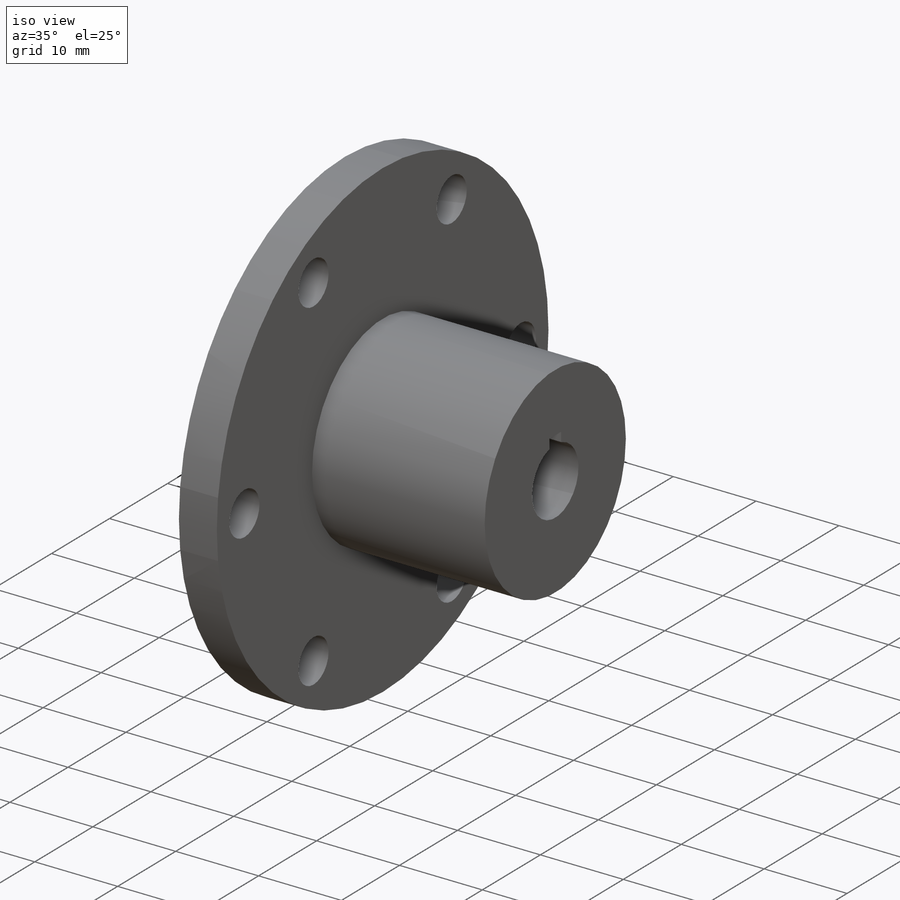
[diagram: iso view]
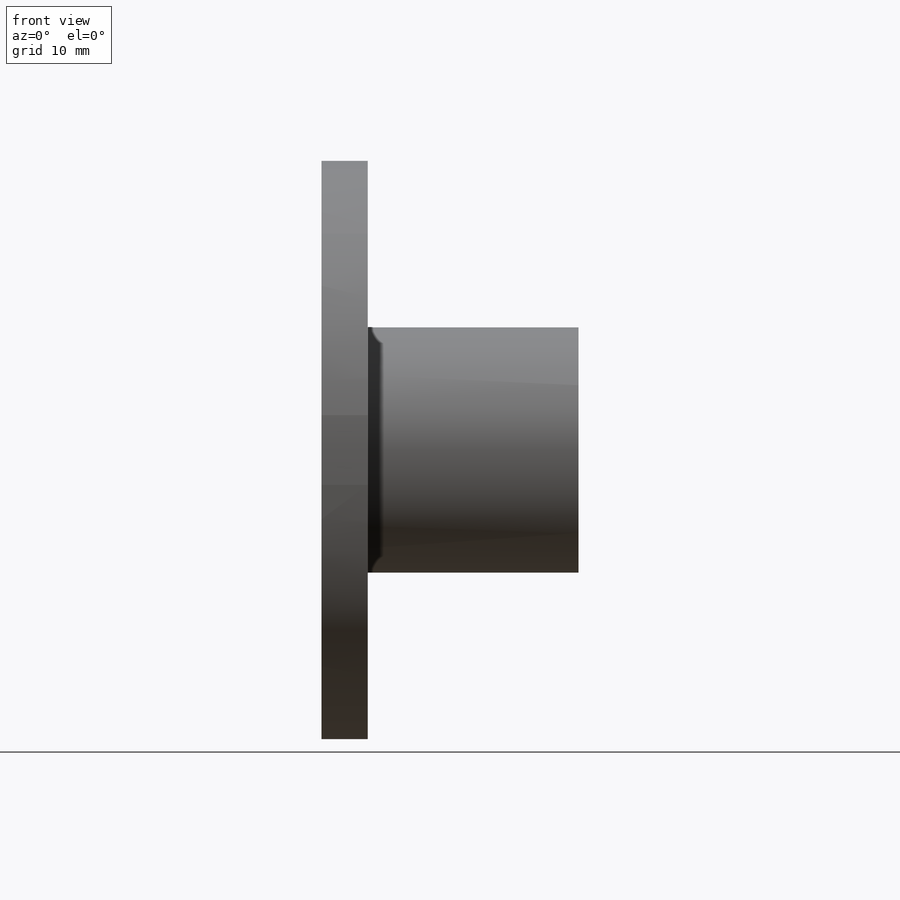
[diagram: front view]
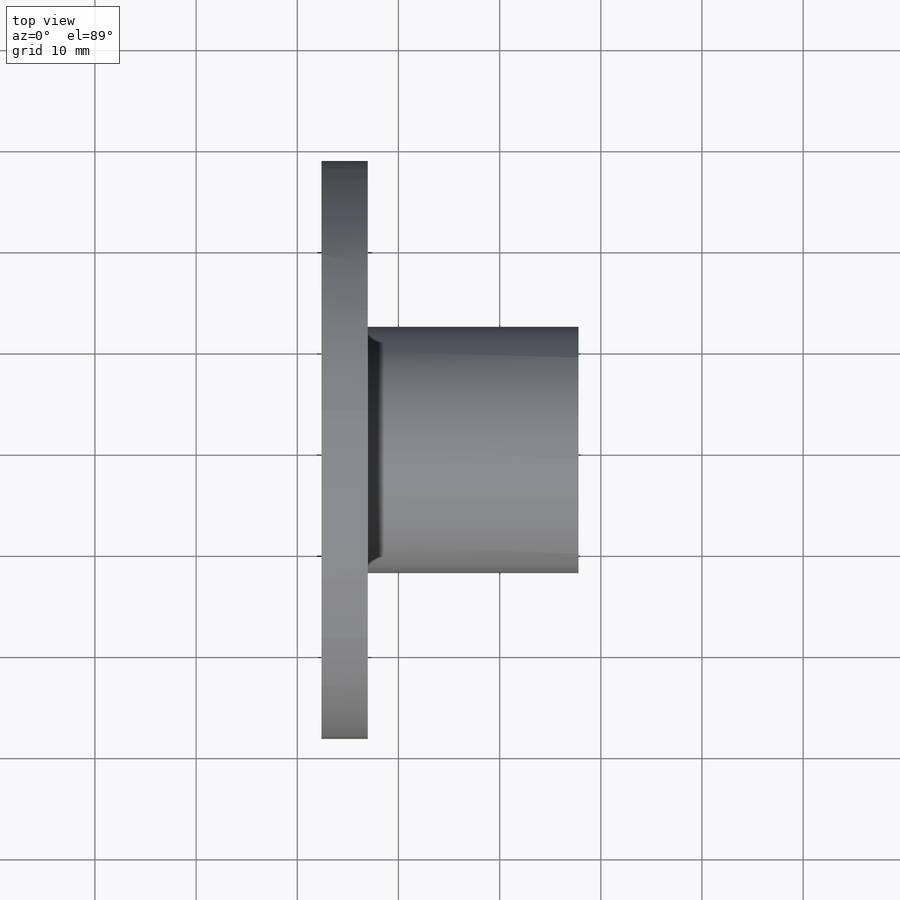
[diagram: top view]
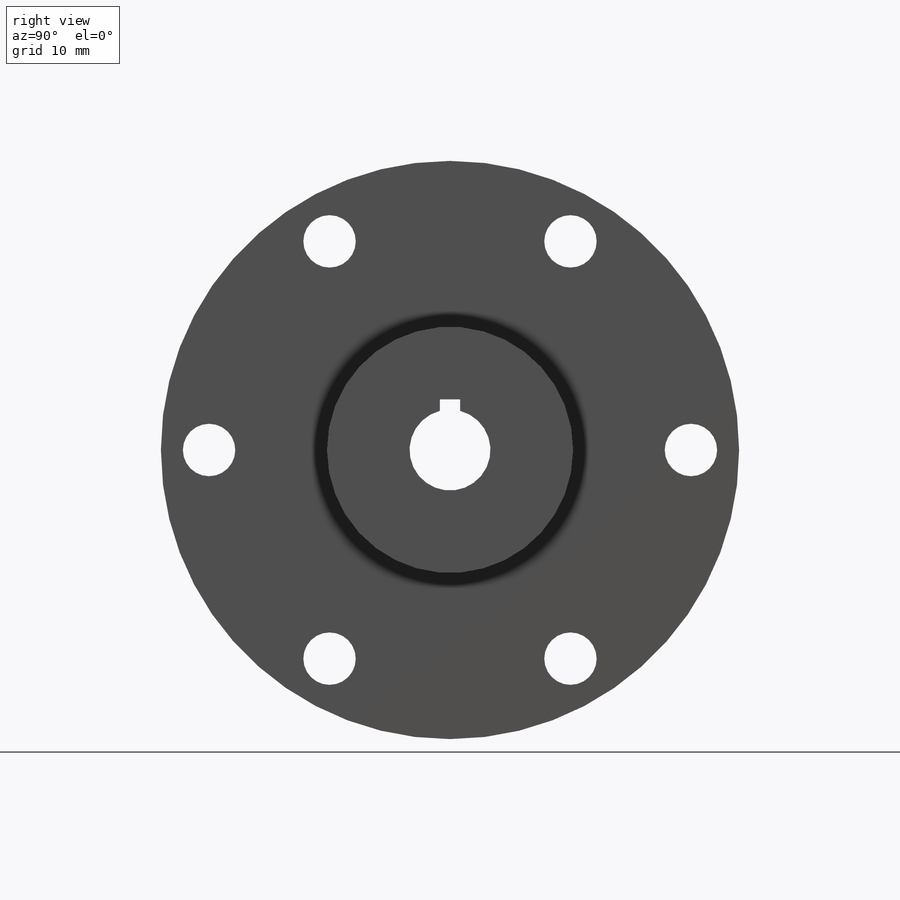
[diagram: right view]
SOLIDWORKS PART (.sldprt)
format: sldprt  version: not decoded by parser v0  size: 151,552 bytes
history: native  units: mm
features: sketch x6, material x1, revolve x1, extrude x1, cut_extrude x1, plane x1, cut_revolve x1, hole x1 (+13 scaffold rows collapsed)
feature tree (26):
  scaffold x13  (default folders/planes/origin — collapsed)
  material  "Material <not specified>"
  sketch  "Sketch1"
  revolve  "Revolve1"  Angle=360deg
  sketch  "Sketch2"
  extrude  "Boss-Extrude1"  Depth=20.828mm
  sketch  "Sketch3"
  cut_extrude  "Cut-Extrude1"  Depth=25.4mm
  plane  "Plane1"
  sketch  "Sketch4"
  cut_revolve  "Cut-Revolve1"  Angle=360deg
  hole  "Hole1"  Diameter=5.1816mm Depth=25.4mm
  sketch  "Sketch6"
  sketch  "Sketch5"  dims[Diameter=5.1816mm Depth=25.4mm]
decode coverage: 6 of 11 modeling features carry decoded parameters
note: suppression state not decoded; provenance and decode notes live in map.json
